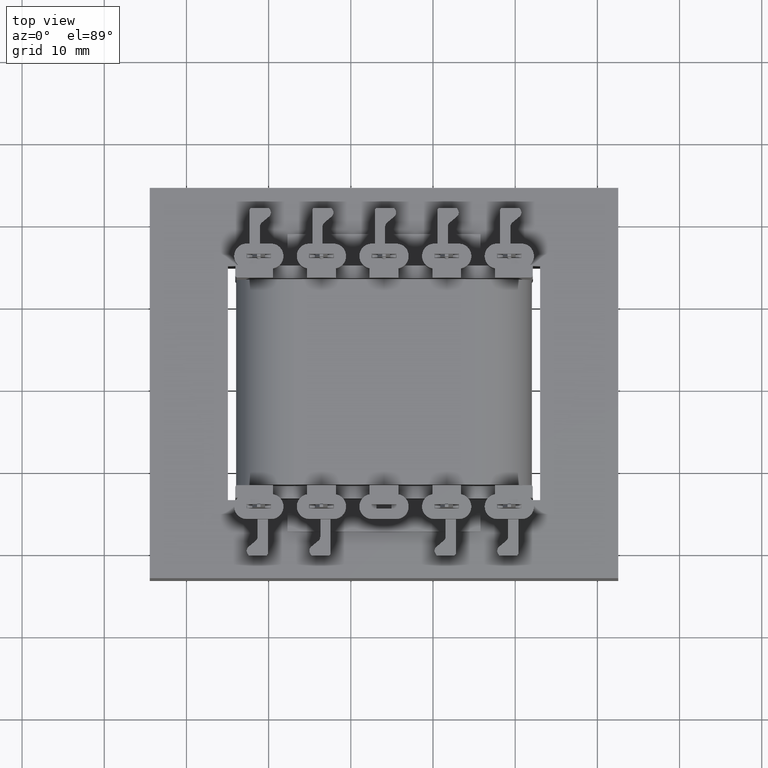
[diagram: clean part render]
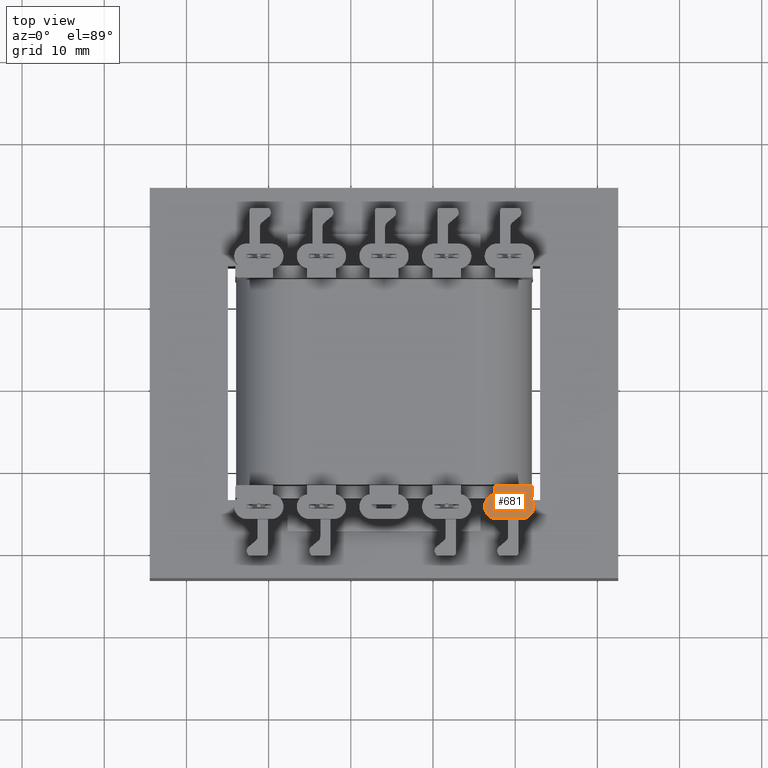
[diagram: same view with one face highlighted and labeled with its STEP entity id]
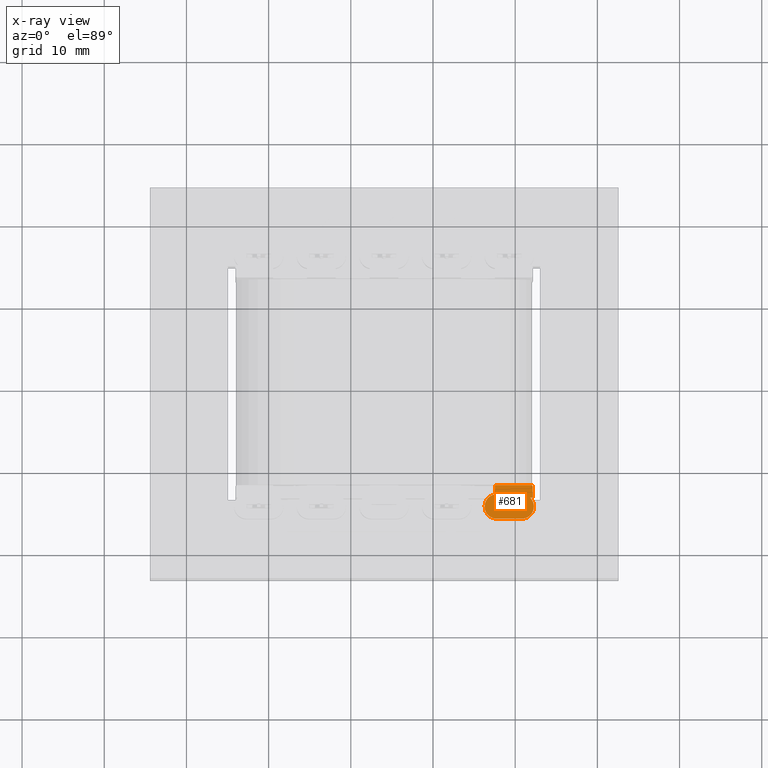
[diagram: x-ray of the same camera — body ghosted, the highlighted face saturated]
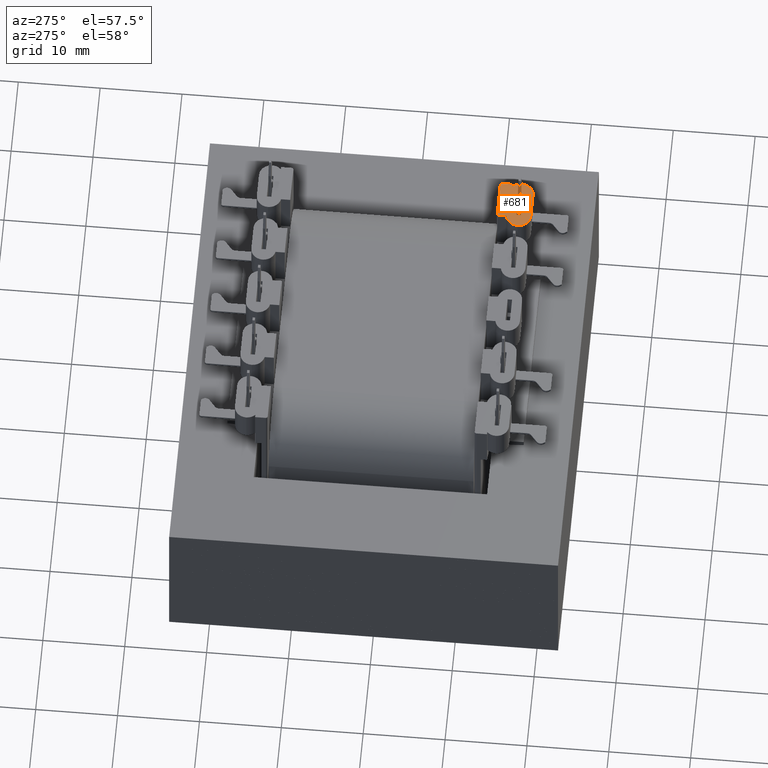
[diagram: same view with one face highlighted and labeled with its STEP entity id]
A machine part, top view. The second image highlights one B-rep face of the part: STEP entity #681.
The next image is the same camera in x-ray: the body ghosted, the highlighted face saturated — about 0% of this face is hidden behind the body in this view.
A second angle (auxiliary view) of the same face is appended — the face is thin or edge-on in the first view.
In plain terms, the highlighted planar face has unit normal (0, 0, -1).
Its self-contained STEP definition (entity closure, byte-faithful):
#263 = EDGE_LOOP ( 'NONE', ( #4022, #9986, #3671, #10421 ) ) ;
#395 = CIRCLE ( 'NONE', #3438, 1.500000000000001332 ) ;
#419 = DIRECTION ( 'NONE',  ( -0.000000000000000000, -0.000000000000000000, -1.000000000000000000 ) ) ;
#434 = DIRECTION ( 'NONE',  ( -2.418141422773499973E-16, 1.000000000000000000, 0.000000000000000000 ) ) ;
#488 = CARTESIAN_POINT ( 'NONE',  ( 12.23999999999999488, 21.71700000000000585, 28.63849999999999696 ) ) ;
#573 = CIRCLE ( 'NONE', #2426, 1.500000000000001332 ) ;
#681 = ADVANCED_FACE ( 'NONE', ( #9319, #11673 ), #10569, .F. ) ;
#721 = CARTESIAN_POINT ( 'NONE',  ( 13.73999999999999666, 21.71700000000000585, 28.63849999999999696 ) ) ;
#748 = CARTESIAN_POINT ( 'NONE',  ( 13.48999999999999666, 21.71700000000000585, 26.03500000000000014 ) ) ;
#855 = ORIENTED_EDGE ( 'NONE', *, *, #4344, .T. ) ;
#978 = LINE ( 'NONE', #10917, #3882 ) ;
#1012 = DIRECTION ( 'NONE',  ( -1.917086311343342687E-16, 1.000000000000000000, -0.000000000000000000 ) ) ;
#1127 = DIRECTION ( 'NONE',  ( 1.000000000000000000, 0.000000000000000000, 0.000000000000000000 ) ) ;
#1290 = CIRCLE ( 'NONE', #9448, 0.2500000000000002220 ) ;
#1448 = EDGE_CURVE ( 'NONE', #4037, #4620, #8506, .T. ) ;
#1647 = CARTESIAN_POINT ( 'NONE',  ( 18.09749999999999659, 21.71700000000000585, 27.55900000000000105 ) ) ;
#1774 = VECTOR ( 'NONE', #12547, 1000.000000000000000 ) ;
#1816 = LINE ( 'NONE', #6489, #7174 ) ;
#2113 = ORIENTED_EDGE ( 'NONE', *, *, #7658, .T. ) ;
#2159 = ORIENTED_EDGE ( 'NONE', *, *, #10169, .T. ) ;
#2413 = DIRECTION ( 'NONE',  ( -1.000000000000000000, -0.000000000000000000, -0.000000000000000000 ) ) ;
#2420 = CARTESIAN_POINT ( 'NONE',  ( 17.78147959653561827, 21.71700000000000585, 27.55900000000000105 ) ) ;
#2426 = AXIS2_PLACEMENT_3D ( 'NONE', #8932, #6816, #3802 ) ;
#2481 = VERTEX_POINT ( 'NONE', #7108 ) ;
#2597 = LINE ( 'NONE', #7044, #8403 ) ;
#2655 = CARTESIAN_POINT ( 'NONE',  ( 13.48999999999999666, 21.71700000000000585, 26.03500000000000014 ) ) ;
#2829 = CARTESIAN_POINT ( 'NONE',  ( 13.73999999999999488, 21.71700000000000230, 28.91349999999999554 ) ) ;
#3054 = DIRECTION ( 'NONE',  ( 1.000000000000000000, 0.000000000000000000, 0.000000000000000000 ) ) ;
#3342 = EDGE_CURVE ( 'NONE', #11525, #11505, #1816, .T. ) ;
#3438 = AXIS2_PLACEMENT_3D ( 'NONE', #721, #434, #10737 ) ;
#3614 = EDGE_CURVE ( 'NONE', #2481, #6187, #4156, .T. ) ;
#3671 = ORIENTED_EDGE ( 'NONE', *, *, #8443, .F. ) ;
#3676 = ORIENTED_EDGE ( 'NONE', *, *, #11621, .T. ) ;
#3789 = ORIENTED_EDGE ( 'NONE', *, *, #3614, .T. ) ;
#3802 = DIRECTION ( 'NONE',  ( -1.000000000000000000, 0.000000000000000000, 0.000000000000000000 ) ) ;
#3882 = VECTOR ( 'NONE', #1127, 1000.000000000000000 ) ;
#3954 = VERTEX_POINT ( 'NONE', #2420 ) ;
#4022 = ORIENTED_EDGE ( 'NONE', *, *, #9558, .F. ) ;
#4037 = VERTEX_POINT ( 'NONE', #5869 ) ;
#4051 = EDGE_CURVE ( 'NONE', #5036, #14249, #10324, .T. ) ;
#4156 = LINE ( 'NONE', #6503, #11801 ) ;
#4344 = EDGE_CURVE ( 'NONE', #4949, #10577, #12482, .T. ) ;
#4620 = VERTEX_POINT ( 'NONE', #2829 ) ;
#4761 = CARTESIAN_POINT ( 'NONE',  ( 18.09749999999999659, 21.71700000000000585, 26.79699999999999704 ) ) ;
#4911 = EDGE_LOOP ( 'NONE', ( #10574, #3676, #3789, #13082, #855, #2159, #2113, #5382, #12955 ) ) ;
#4944 = LINE ( 'NONE', #12464, #1774 ) ;
#4949 = VERTEX_POINT ( 'NONE', #6904 ) ;
#5036 = VERTEX_POINT ( 'NONE', #1647 ) ;
#5241 = CARTESIAN_POINT ( 'NONE',  ( 16.73999999999999488, 21.71700000000000230, 28.91349999999999554 ) ) ;
#5382 = ORIENTED_EDGE ( 'NONE', *, *, #13669, .T. ) ;
#5402 = CARTESIAN_POINT ( 'NONE',  ( 13.73999999999999666, 21.71700000000000585, 28.63849999999999696 ) ) ;
#5856 = CARTESIAN_POINT ( 'NONE',  ( 14.31499999999999595, 21.71700000000000230, 28.36349999999999483 ) ) ;
#5869 = CARTESIAN_POINT ( 'NONE',  ( 13.73999999999999488, 21.71700000000000230, 28.36349999999999483 ) ) ;
#5918 = LINE ( 'NONE', #5856, #11892 ) ;
#6079 = CARTESIAN_POINT ( 'NONE',  ( 13.73999999999999666, 21.71700000000000585, 30.13849999999999696 ) ) ;
#6113 = CARTESIAN_POINT ( 'NONE',  ( 16.73999999999999488, 21.71700000000000585, 30.13849999999999696 ) ) ;
#6187 = VERTEX_POINT ( 'NONE', #2655 ) ;
#6276 = DIRECTION ( 'NONE',  ( 0.000000000000000000, 0.000000000000000000, -1.000000000000000000 ) ) ;
#6489 = CARTESIAN_POINT ( 'NONE',  ( 16.73999999999999488, 21.71700000000000230, 28.91349999999999554 ) ) ;
#6496 = DIRECTION ( 'NONE',  ( -2.418141422773499973E-16, 1.000000000000000000, 0.000000000000000000 ) ) ;
#6503 = CARTESIAN_POINT ( 'NONE',  ( 18.09749999999999659, 21.71700000000000585, 26.03500000000000014 ) ) ;
#6714 = DIRECTION ( 'NONE',  ( -1.000000000000000000, 0.000000000000000000, 0.000000000000000000 ) ) ;
#6816 = DIRECTION ( 'NONE',  ( -2.418141422773499973E-16, 1.000000000000000000, 0.000000000000000000 ) ) ;
#6904 = CARTESIAN_POINT ( 'NONE',  ( 13.48999999999999666, 21.71700000000000585, 27.15948005422509226 ) ) ;
#7012 = VECTOR ( 'NONE', #10784, 1000.000000000000000 ) ;
#7044 = CARTESIAN_POINT ( 'NONE',  ( -5.251477727837211122E-15, 21.71700000000000230, 30.13849999999999696 ) ) ;
#7108 = CARTESIAN_POINT ( 'NONE',  ( 17.84749999999999659, 21.71700000000000585, 26.03500000000000014 ) ) ;
#7174 = VECTOR ( 'NONE', #6276, 1000.000000000000000 ) ;
#7658 = EDGE_CURVE ( 'NONE', #8484, #8892, #2597, .T. ) ;
#8403 = VECTOR ( 'NONE', #9317, 1000.000000000000000 ) ;
#8443 = EDGE_CURVE ( 'NONE', #11505, #4037, #5918, .T. ) ;
#8484 = VERTEX_POINT ( 'NONE', #6079 ) ;
#8506 = LINE ( 'NONE', #12979, #7012 ) ;
#8845 = EDGE_CURVE ( 'NONE', #5036, #3954, #4944, .T. ) ;
#8865 = DIRECTION ( 'NONE',  ( -0.000000000000000000, -0.000000000000000000, -1.000000000000000000 ) ) ;
#8892 = VERTEX_POINT ( 'NONE', #6113 ) ;
#8932 = CARTESIAN_POINT ( 'NONE',  ( 16.73999999999999488, 21.71700000000000585, 28.63849999999999696 ) ) ;
#9317 = DIRECTION ( 'NONE',  ( 1.000000000000000000, 2.418141422773499973E-16, 0.000000000000000000 ) ) ;
#9319 = FACE_BOUND ( 'NONE', #263, .T. ) ;
#9448 = AXIS2_PLACEMENT_3D ( 'NONE', #13224, #1012, #3054 ) ;
#9556 = CARTESIAN_POINT ( 'NONE',  ( 18.09749999999999659, 21.71700000000000585, 26.28500000000000014 ) ) ;
#9558 = EDGE_CURVE ( 'NONE', #4620, #11525, #978, .T. ) ;
#9771 = AXIS2_PLACEMENT_3D ( 'NONE', #12617, #13723, #13943 ) ;
#9986 = ORIENTED_EDGE ( 'NONE', *, *, #1448, .F. ) ;
#10169 = EDGE_CURVE ( 'NONE', #10577, #8484, #395, .T. ) ;
#10324 = LINE ( 'NONE', #4761, #13170 ) ;
#10421 = ORIENTED_EDGE ( 'NONE', *, *, #3342, .F. ) ;
#10569 = PLANE ( 'NONE',  #9771 ) ;
#10574 = ORIENTED_EDGE ( 'NONE', *, *, #4051, .T. ) ;
#10577 = VERTEX_POINT ( 'NONE', #488 ) ;
#10592 = EDGE_CURVE ( 'NONE', #4949, #6187, #10765, .T. ) ;
#10737 = DIRECTION ( 'NONE',  ( -1.000000000000000000, 0.000000000000000000, 0.000000000000000000 ) ) ;
#10765 = LINE ( 'NONE', #748, #13438 ) ;
#10784 = DIRECTION ( 'NONE',  ( -0.000000000000000000, -0.000000000000000000, 1.000000000000000000 ) ) ;
#10917 = CARTESIAN_POINT ( 'NONE',  ( 14.31499999999999595, 21.71700000000000230, 28.91349999999999554 ) ) ;
#11505 = VERTEX_POINT ( 'NONE', #11630 ) ;
#11525 = VERTEX_POINT ( 'NONE', #5241 ) ;
#11621 = EDGE_CURVE ( 'NONE', #14249, #2481, #1290, .T. ) ;
#11630 = CARTESIAN_POINT ( 'NONE',  ( 16.73999999999999488, 21.71700000000000230, 28.36349999999999483 ) ) ;
#11673 = FACE_OUTER_BOUND ( 'NONE', #4911, .T. ) ;
#11801 = VECTOR ( 'NONE', #14174, 1000.000000000000000 ) ;
#11892 = VECTOR ( 'NONE', #2413, 1000.000000000000000 ) ;
#12464 = CARTESIAN_POINT ( 'NONE',  ( -4.163336342344337815E-15, 21.71700000000000230, 27.55900000000000105 ) ) ;
#12482 = CIRCLE ( 'NONE', #14348, 1.500000000000001332 ) ;
#12547 = DIRECTION ( 'NONE',  ( -1.000000000000000000, -1.917086311343342687E-16, 0.000000000000000000 ) ) ;
#12617 = CARTESIAN_POINT ( 'NONE',  ( 18.09749999999999659, 21.71700000000000585, 26.79699999999999704 ) ) ;
#12955 = ORIENTED_EDGE ( 'NONE', *, *, #8845, .F. ) ;
#12979 = CARTESIAN_POINT ( 'NONE',  ( 13.73999999999999488, 21.71700000000000230, 28.91349999999999554 ) ) ;
#13082 = ORIENTED_EDGE ( 'NONE', *, *, #10592, .F. ) ;
#13170 = VECTOR ( 'NONE', #8865, 1000.000000000000000 ) ;
#13224 = CARTESIAN_POINT ( 'NONE',  ( 17.84749999999999659, 21.71700000000000585, 26.28500000000000014 ) ) ;
#13438 = VECTOR ( 'NONE', #419, 1000.000000000000000 ) ;
#13669 = EDGE_CURVE ( 'NONE', #8892, #3954, #573, .T. ) ;
#13723 = DIRECTION ( 'NONE',  ( 1.917086311343342687E-16, -1.000000000000000000, 0.000000000000000000 ) ) ;
#13943 = DIRECTION ( 'NONE',  ( 1.000000000000000000, 1.917086311343342687E-16, 0.000000000000000000 ) ) ;
#14174 = DIRECTION ( 'NONE',  ( -1.000000000000000000, -1.917086311343342687E-16, 0.000000000000000000 ) ) ;
#14249 = VERTEX_POINT ( 'NONE', #9556 ) ;
#14348 = AXIS2_PLACEMENT_3D ( 'NONE', #5402, #6496, #6714 ) ;